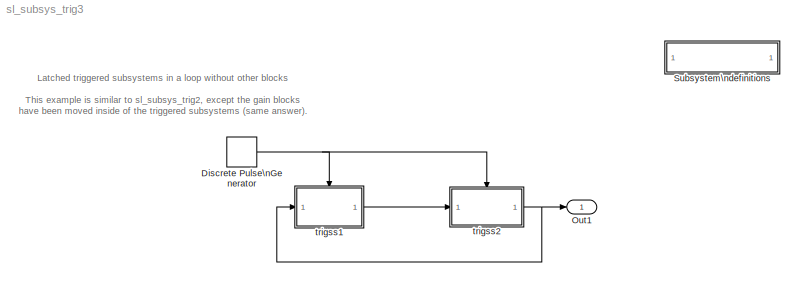
MODEL sl_subsys_trig3
KIND model
BLOCK [SubSystem]  Subsystem\ndefinitions
  MaskDisplay = disp('Subsystem\\ndefinitions')\n\n
  MaskIconFrame = on
  MaskIconOpaque = on
  MaskIconRotate = none
  MaskIconUnits = autoscale
  MinAlgLoopOccurrences = off
  OpenFcn = helpview([matlabroot,'/toolbox/simulink/simdemos/sl_subsys_definitions.html']);
  Ports = []
  PropExecContextAcrossSSBoundary = on
  RTWSystemCode = Auto
  TreatAsAtomicUnit = off
BLOCK [DiscretePulseGenerator] Discrete Pulse\nGenerator
  Ports = [0, 1]
BLOCK [Outport] Out1
  IconDisplay = Port number
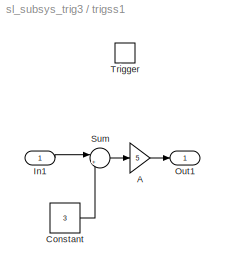
BLOCK [SubSystem] trigss1
  MinAlgLoopOccurrences = off
  Ports = [1, 1, 0, 1]
  PropExecContextAcrossSSBoundary = on
  RTWSystemCode = Auto
  TreatAsAtomicUnit = on
BLOCK [Gain] trigss1/A
  Gain = 5
BLOCK [Constant] trigss1/Constant
  Value = 3
BLOCK [Inport] trigss1/In1
  IconDisplay = Port number
  LatchInput = on
  Port = 1
BLOCK [Outport] trigss1/Out1
  IconDisplay = Port number
BLOCK [Sum] trigss1/Sum
  IconShape = round
  Inputs = |++
  Ports = [2, 1]
BLOCK [TriggerPort] trigss1/Trigger
  Ports = []
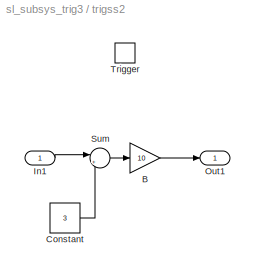
BLOCK [SubSystem] trigss2
  MinAlgLoopOccurrences = off
  Ports = [1, 1, 0, 1]
  PropExecContextAcrossSSBoundary = on
  RTWSystemCode = Auto
  TreatAsAtomicUnit = on
BLOCK [Gain] trigss2/B
  Gain = 10
BLOCK [Constant] trigss2/Constant
  Value = 3
BLOCK [Inport] trigss2/In1
  IconDisplay = Port number
  LatchInput = on
  Port = 1
BLOCK [Outport] trigss2/Out1
  IconDisplay = Port number
BLOCK [Sum] trigss2/Sum
  IconShape = round
  Inputs = |++
  Ports = [2, 1]
BLOCK [TriggerPort] trigss2/Trigger
  Ports = []
ANNOTATION (root): Latched triggered subsystems in a loop without other blocks\n\nThis example is similar to sl_subsys_trig2, except the gain blocks\nhave been moved inside of the triggered subsystems (same answer).
NET Discrete Pulse\nGenerator:1 -> trigss1:trigger, trigss2:trigger
LINE trigss1/A:1 -> trigss1/Out1:1
LINE trigss1/Constant:1 -> trigss1/Sum:2
LINE trigss1/In1:1 -> trigss1/Sum:1
LINE trigss1/Sum:1 -> trigss1/A:1
LINE trigss1:1 -> trigss2:1
LINE trigss2/B:1 -> trigss2/Out1:1
LINE trigss2/Constant:1 -> trigss2/Sum:2
LINE trigss2/In1:1 -> trigss2/Sum:1
LINE trigss2/Sum:1 -> trigss2/B:1
NET trigss2:1 -> Out1:1, trigss1:1
note: NET lines group one-source signal fan-out (src -> all destinations, sorted); 1:1 wires keep LINE
